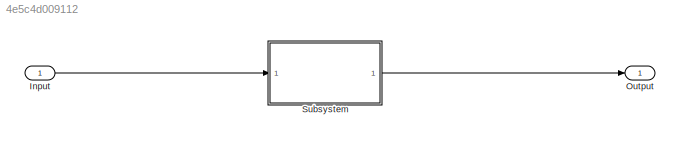
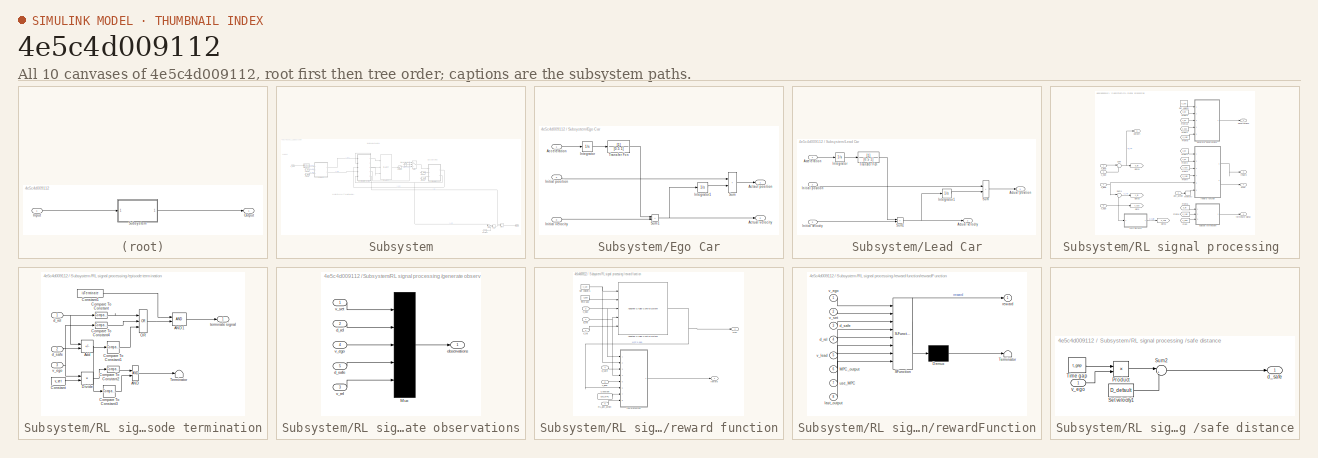
[diagram: thumbnail index - all 10 canvases of the model, root first then tree order]
MODEL slx_4e5c4d009112
KIND model
CONFIG AbsTol = auto
CONFIG EnableMultiTasking = off
CONFIG FixedStep = Ts
CONFIG MaxStep = auto
CONFIG MinStep = auto
CONFIG RelTol = 1e-3
CONFIG SampleTimeConstraint = Unconstrained
CONFIG SolverName = FixedStepAuto
CONFIG StartTime = 0.0
CONFIG StopTime = T
BLOCK [Inport] Input
BLOCK [Outport] Output
BLOCK [SubSystem] Subsystem
  Ports = [1, 1]
  RequestExecContextInheritance = off
BLOCK [Constant] Subsystem/Constant
  Value = D_default
BLOCK [SubSystem] Subsystem/Ego Car
  Ports = [3, 2]
  RequestExecContextInheritance = off
BLOCK [Inport] Subsystem/Ego Car/Acceleration
BLOCK [Outport] Subsystem/Ego Car/Actaul position
  VectorParamsAs1DForOutWhenUnconnected = off
BLOCK [Outport] Subsystem/Ego Car/Actual velocity
  Port = 2
  VectorParamsAs1DForOutWhenUnconnected = off
BLOCK [Inport] Subsystem/Ego Car/Initial position
  Port = 2
BLOCK [Inport] Subsystem/Ego Car/Initial velocity
  Port = 3
BLOCK [Integrator] Subsystem/Ego Car/Integrator
  Ports = [1, 1]
BLOCK [Integrator] Subsystem/Ego Car/Integrator1
  Ports = [1, 1]
BLOCK [Sum] Subsystem/Ego Car/Sum
  IconShape = rectangular
  Ports = [2, 1]
BLOCK [Sum] Subsystem/Ego Car/Sum1
  IconShape = rectangular
  Ports = [2, 1]
BLOCK [TransferFcn] Subsystem/Ego Car/Transfer Fcn
  Denominator = [0.5 1]
BLOCK [Gain] Subsystem/Gain1
  Gain = 1.4
BLOCK [SubSystem] Subsystem/Lead Car
  Ports = [3, 2]
  RequestExecContextInheritance = off
BLOCK [Inport] Subsystem/Lead Car/Acceleration
BLOCK [Outport] Subsystem/Lead Car/Actual position
  VectorParamsAs1DForOutWhenUnconnected = off
BLOCK [Outport] Subsystem/Lead Car/Actual velocity
  Port = 2
  VectorParamsAs1DForOutWhenUnconnected = off
BLOCK [Inport] Subsystem/Lead Car/Initial position
  Port = 2
BLOCK [Inport] Subsystem/Lead Car/Initial velocity
  Port = 3
BLOCK [Integrator] Subsystem/Lead Car/Integrator
  Ports = [1, 1]
BLOCK [Integrator] Subsystem/Lead Car/Integrator1
  Ports = [1, 1]
BLOCK [Sum] Subsystem/Lead Car/Sum
  IconShape = rectangular
  Ports = [2, 1]
BLOCK [Sum] Subsystem/Lead Car/Sum1
  IconShape = rectangular
  Ports = [2, 1]
BLOCK [TransferFcn] Subsystem/Lead Car/Transfer Fcn
  Denominator = [0.5 1]
BLOCK [Sum] Subsystem/Minus
  IconShape = rectangular
  Inputs = +-
  Ports = [2, 1]
BLOCK [Outport] Subsystem/Outport
BLOCK [Sum] Subsystem/Plus
  IconShape = rectangular
  Ports = [2, 1]
BLOCK [Reference] Subsystem/RL Agent  REF=rllib/RL Agent
  Ports = [3, 1]
  SourceBlock = rllib/RL Agent
  SourceProductBaseCode = RL
  SourceType = RL Agent
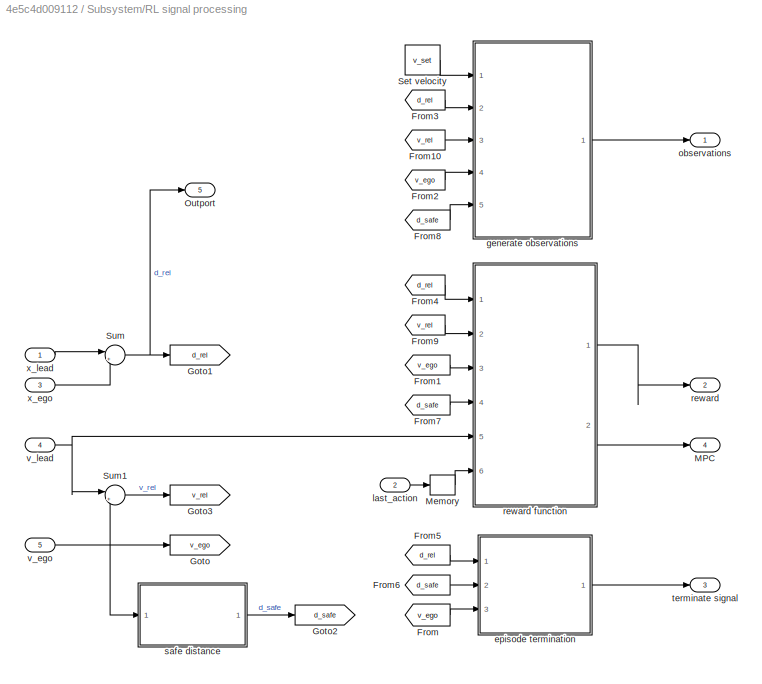
BLOCK [SubSystem] Subsystem/RL signal processing 
  Ports = [5, 5]
  RequestExecContextInheritance = off
BLOCK [From] Subsystem/RL signal processing /From
  GotoTag = v_ego
BLOCK [From] Subsystem/RL signal processing /From1
  GotoTag = v_ego
BLOCK [From] Subsystem/RL signal processing /From10
  GotoTag = v_rel
BLOCK [From] Subsystem/RL signal processing /From2
  GotoTag = v_ego
BLOCK [From] Subsystem/RL signal processing /From3
  GotoTag = d_rel
BLOCK [From] Subsystem/RL signal processing /From4
  GotoTag = d_rel
BLOCK [From] Subsystem/RL signal processing /From5
  GotoTag = d_rel
BLOCK [From] Subsystem/RL signal processing /From6
  GotoTag = d_safe
BLOCK [From] Subsystem/RL signal processing /From7
  GotoTag = d_safe
BLOCK [From] Subsystem/RL signal processing /From8
  GotoTag = d_safe
BLOCK [From] Subsystem/RL signal processing /From9
  GotoTag = v_rel
BLOCK [Goto] Subsystem/RL signal processing /Goto
  GotoTag = v_ego
BLOCK [Goto] Subsystem/RL signal processing /Goto1
  GotoTag = d_rel
BLOCK [Goto] Subsystem/RL signal processing /Goto2
  GotoTag = d_safe
BLOCK [Goto] Subsystem/RL signal processing /Goto3
  GotoTag = v_rel
BLOCK [Outport] Subsystem/RL signal processing /MPC
  Port = 4
BLOCK [Memory] Subsystem/RL signal processing /Memory
BLOCK [Outport] Subsystem/RL signal processing /Outport
  Port = 5
BLOCK [Constant] Subsystem/RL signal processing /Set velocity
  SampleTime = Ts
  Value = v_set
BLOCK [Sum] Subsystem/RL signal processing /Sum
  Inputs = |+-
  Ports = [2, 1]
BLOCK [Sum] Subsystem/RL signal processing /Sum1
  Inputs = |+-
  Ports = [2, 1]
BLOCK [SubSystem] Subsystem/RL signal processing /episode termination
  Ports = [3, 1]
  RequestExecContextInheritance = off
BLOCK [Logic] Subsystem/RL signal processing /episode termination/AND
  AllPortsSameDT = off
  IconShape = distinctive
  OutDataTypeStr = boolean
  Ports = [2, 1]
BLOCK [Logic] Subsystem/RL signal processing /episode termination/AND1
  AllPortsSameDT = off
  IconShape = distinctive
  OutDataTypeStr = boolean
  Ports = [2, 1]
BLOCK [Sum] Subsystem/RL signal processing /episode termination/Add
  IconShape = rectangular
  Inputs = +-
  Ports = [2, 1]
BLOCK [Reference] Subsystem/RL signal processing /episode termination/Compare To Constant  REF=simulink/Logic and Bit
Operations/Compare
To Constant
  Ports = [1, 1]
  SourceBlock = simulink/Logic and Bit\nOperations/Compare\nTo Constant
  SourceProductBaseCode = SL
  SourceType = Compare To Constant
BLOCK [Reference] Subsystem/RL signal processing /episode termination/Compare To Constant1  REF=simulink/Logic and Bit
Operations/Compare
To Constant
  Ports = [1, 1]
  SourceBlock = simulink/Logic and Bit\nOperations/Compare\nTo Constant
  SourceProductBaseCode = SL
  SourceType = Compare To Constant
BLOCK [Reference] Subsystem/RL signal processing /episode termination/Compare To Constant2  REF=simulink/Logic and Bit
Operations/Compare
To Constant
  Ports = [1, 1]
  SourceBlock = simulink/Logic and Bit\nOperations/Compare\nTo Constant
  SourceProductBaseCode = SL
  SourceType = Compare To Constant
BLOCK [Reference] Subsystem/RL signal processing /episode termination/Compare To Constant3  REF=simulink/Logic and Bit
Operations/Compare
To Constant
  Ports = [1, 1]
  SourceBlock = simulink/Logic and Bit\nOperations/Compare\nTo Constant
  SourceProductBaseCode = SL
  SourceType = Compare To Constant
BLOCK [Reference] Subsystem/RL signal processing /episode termination/Compare To Constant4  REF=simulink/Logic and Bit
Operations/Compare
To Constant
  Ports = [1, 1]
  SourceBlock = simulink/Logic and Bit\nOperations/Compare\nTo Constant
  SourceProductBaseCode = SL
  SourceType = Compare To Constant
BLOCK [Constant] Subsystem/RL signal processing /episode termination/Constant
  Value = v_set
BLOCK [Constant] Subsystem/RL signal processing /episode termination/Constant1
  Value = isTerminate
BLOCK [Product] Subsystem/RL signal processing /episode termination/Divide
  Inputs = */
  Ports = [2, 1]
BLOCK [Logic] Subsystem/RL signal processing /episode termination/OR
  AllPortsSameDT = off
  IconShape = distinctive
  Inputs = 3
  Operator = OR
  OutDataTypeStr = boolean
  Ports = [3, 1]
BLOCK [Terminator] Subsystem/RL signal processing /episode termination/Terminator
BLOCK [Inport] Subsystem/RL signal processing /episode termination/d_rel
BLOCK [Inport] Subsystem/RL signal processing /episode termination/d_safe
  Port = 2
BLOCK [Outport] Subsystem/RL signal processing /episode termination/terminate signal
BLOCK [Inport] Subsystem/RL signal processing /episode termination/v_ego
  Port = 3
BLOCK [SubSystem] Subsystem/RL signal processing /generate observations
  Ports = [5, 1]
  RequestExecContextInheritance = off
BLOCK [Mux] Subsystem/RL signal processing /generate observations/Mux
  DisplayOption = bar
  Inputs = 5
  Ports = [5, 1]
BLOCK [Inport] Subsystem/RL signal processing /generate observations/d_rel
  Port = 2
BLOCK [Inport] Subsystem/RL signal processing /generate observations/d_safe
  Port = 5
BLOCK [Outport] Subsystem/RL signal processing /generate observations/observations
BLOCK [Inport] Subsystem/RL signal processing /generate observations/v_ego
  Port = 4
BLOCK [Inport] Subsystem/RL signal processing /generate observations/v_rel
  Port = 3
BLOCK [Inport] Subsystem/RL signal processing /generate observations/v_set
BLOCK [Inport] Subsystem/RL signal processing /last_action
  Port = 2
BLOCK [Outport] Subsystem/RL signal processing /observations
BLOCK [Outport] Subsystem/RL signal processing /reward
  Port = 2
BLOCK [SubSystem] Subsystem/RL signal processing /reward function
  Ports = [6, 2]
  RequestExecContextInheritance = off
BLOCK [Reference] Subsystem/RL signal processing /reward function/Adaptive Cruise Control System  REF=mpcadaslib/Adaptive Cruise Control System
  Ports = [5, 1]
  SourceBlock = mpcadaslib/Adaptive Cruise Control System
  SourceProductBaseCode = MP
  SourceType = Adaptive cruise control (ACC) system
BLOCK [Constant] Subsystem/RL signal processing /reward function/Constant
  Value = use_MPC
BLOCK [Outport] Subsystem/RL signal processing /reward function/MPC
  Port = 2
BLOCK [Inport] Subsystem/RL signal processing /reward function/RL_last_action
  Port = 6
BLOCK [Constant] Subsystem/RL signal processing /reward function/Set velocity1
  SampleTime = Ts
  Value = v_set
BLOCK [Constant] Subsystem/RL signal processing /reward function/Time gap
  SampleTime = Ts
  Value = t_gap
BLOCK [Inport] Subsystem/RL signal processing /reward function/d_rel
BLOCK [Inport] Subsystem/RL signal processing /reward function/d_safe
  Port = 4
BLOCK [Outport] Subsystem/RL signal processing /reward function/reward
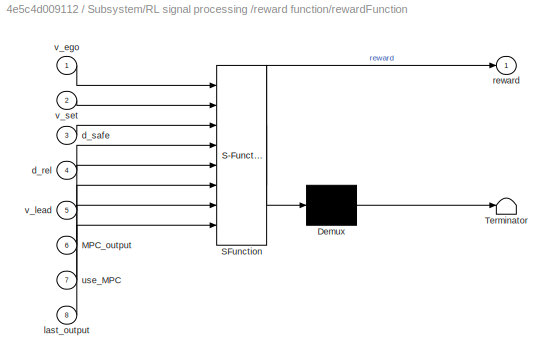
BLOCK [SubSystem] Subsystem/RL signal processing /reward function/rewardFunction
  ErrorFcn = Stateflow.Translate.translate
  PermitHierarchicalResolution = ExplicitOnly
  Ports = [8, 1]
  RequestExecContextInheritance = off
  SFBlockType = MATLAB Function
  TreatAsAtomicUnit = on
BLOCK [Demux] Subsystem/RL signal processing /reward function/rewardFunction/ Demux 
  Outputs = 1
  Ports = [1, 1]
BLOCK [S-Function] Subsystem/RL signal processing /reward function/rewardFunction/ SFunction 
  EnableBusSupport = on
  FunctionName = sf_sfun
  PortCounts = [8 2]
  Ports = [8, 2]
  SFcnIsStateOwnerBlock = off
  SFunctionDeploymentMode = off
  Tag = Stateflow S-Function 2
BLOCK [Terminator] Subsystem/RL signal processing /reward function/rewardFunction/ Terminator 
BLOCK [Inport] Subsystem/RL signal processing /reward function/rewardFunction/MPC_output
  Port = 6
BLOCK [Inport] Subsystem/RL signal processing /reward function/rewardFunction/d_rel
  Port = 4
BLOCK [Inport] Subsystem/RL signal processing /reward function/rewardFunction/d_safe
  Port = 3
BLOCK [Inport] Subsystem/RL signal processing /reward function/rewardFunction/last_output
  Port = 8
BLOCK [Outport] Subsystem/RL signal processing /reward function/rewardFunction/reward
BLOCK [Inport] Subsystem/RL signal processing /reward function/rewardFunction/use_MPC
  Port = 7
BLOCK [Inport] Subsystem/RL signal processing /reward function/rewardFunction/v_ego
BLOCK [Inport] Subsystem/RL signal processing /reward function/rewardFunction/v_lead
  Port = 5
BLOCK [Inport] Subsystem/RL signal processing /reward function/rewardFunction/v_set
  Port = 2
BLOCK [Inport] Subsystem/RL signal processing /reward function/v_ego
  Port = 3
BLOCK [Inport] Subsystem/RL signal processing /reward function/v_lead
  Port = 5
BLOCK [Inport] Subsystem/RL signal processing /reward function/v_rel
  Port = 2
BLOCK [SubSystem] Subsystem/RL signal processing /safe distance
  Ports = [1, 1]
  RequestExecContextInheritance = off
BLOCK [Product] Subsystem/RL signal processing /safe distance/Product
  Ports = [2, 1]
BLOCK [Constant] Subsystem/RL signal processing /safe distance/Set velocity1
  SampleTime = Ts
  Value = D_default
BLOCK [Sum] Subsystem/RL signal processing /safe distance/Sum2
  Inputs = |++
  Ports = [2, 1]
BLOCK [Constant] Subsystem/RL signal processing /safe distance/Time gap
  SampleTime = Ts
  Value = t_gap
BLOCK [Outport] Subsystem/RL signal processing /safe distance/d_safe
BLOCK [Inport] Subsystem/RL signal processing /safe distance/v_ego
BLOCK [Outport] Subsystem/RL signal processing /terminate signal
  Port = 3
BLOCK [Inport] Subsystem/RL signal processing /v_ego
  Port = 5
BLOCK [Inport] Subsystem/RL signal processing /v_lead
  Port = 4
BLOCK [Inport] Subsystem/RL signal processing /x_ego
  Port = 3
BLOCK [Inport] Subsystem/RL signal processing /x_lead
BLOCK [RandomNumber] Subsystem/Random Number
  SampleTime = 1
BLOCK [Saturate] Subsystem/Saturation
  LowerLimit = amin_ego
  UpperLimit = amax_ego
BLOCK [StateSpace] Subsystem/State-Space
  A = -10
  B = 10
  D = 0
  InitialCondition = 0
  NameLocation = top
  Ports = [1, 1]
BLOCK [Switch] Subsystem/Switch
  Criteria = u2 > Threshold
  InputSameDT = off
  SaturateOnIntegerOverflow = off
BLOCK [Inport] Subsystem/in_lead
BLOCK [Constant] Subsystem/v0 host
  SampleTime = Ts
  Value = v0_ego
BLOCK [Constant] Subsystem/v0 lead
  SampleTime = Ts
  Value = v0_lead
BLOCK [Constant] Subsystem/x0 host
  SampleTime = Ts
  Value = x0_ego
BLOCK [Constant] Subsystem/x0 lead
  SampleTime = Ts
  Value = x0_lead
ANNOTATION Subsystem: Reinforcement Learning
ANNOTATION Subsystem: <copyright redacted>
ANNOTATION Subsystem: Ego car dynamics
ANNOTATION Subsystem: Lead Car
LINE Input:1 -> Subsystem:1
LINE Subsystem/Constant:1 -> Subsystem/Plus:2
LINE Subsystem/Ego Car/Acceleration:1 -> Subsystem/Ego Car/Integrator:1
LINE Subsystem/Ego Car/Initial position:1 -> Subsystem/Ego Car/Sum:1
LINE Subsystem/Ego Car/Initial velocity:1 -> Subsystem/Ego Car/Sum1:2
LINE Subsystem/Ego Car/Integrator1:1 -> Subsystem/Ego Car/Sum:2
LINE Subsystem/Ego Car/Integrator:1 -> Subsystem/Ego Car/Transfer Fcn:1
NET Subsystem/Ego Car/Sum1:1 -> Subsystem/Ego Car/Actual velocity:1, Subsystem/Ego Car/Integrator1:1
LINE Subsystem/Ego Car/Sum:1 -> Subsystem/Ego Car/Actaul position:1
LINE Subsystem/Ego Car/Transfer Fcn:1 -> Subsystem/Ego Car/Sum1:1
LINE Subsystem/Ego Car:1 -> Subsystem/RL signal processing :3
NET Subsystem/Ego Car:2 -> Subsystem/Gain1:1, Subsystem/RL signal processing :5
LINE Subsystem/Gain1:1 -> Subsystem/Plus:1
LINE Subsystem/Lead Car/Acceleration:1 -> Subsystem/Lead Car/Integrator:1
LINE Subsystem/Lead Car/Initial position:1 -> Subsystem/Lead Car/Sum:1
LINE Subsystem/Lead Car/Initial velocity:1 -> Subsystem/Lead Car/Sum1:2
LINE Subsystem/Lead Car/Integrator1:1 -> Subsystem/Lead Car/Sum:2
LINE Subsystem/Lead Car/Integrator:1 -> Subsystem/Lead Car/Transfer Fcn:1
NET Subsystem/Lead Car/Sum1:1 -> Subsystem/Lead Car/Actual velocity:1, Subsystem/Lead Car/Integrator1:1
LINE Subsystem/Lead Car/Sum:1 -> Subsystem/Lead Car/Actual position:1
LINE Subsystem/Lead Car/Transfer Fcn:1 -> Subsystem/Lead Car/Sum1:1
LINE Subsystem/Lead Car:1 -> Subsystem/RL signal processing :1
LINE Subsystem/Lead Car:2 -> Subsystem/RL signal processing :4
LINE Subsystem/Minus:1 -> Subsystem/Outport:1
LINE Subsystem/Plus:1 -> Subsystem/Minus:2
LINE Subsystem/RL Agent:1 -> Subsystem/Saturation:1
LINE Subsystem/RL signal processing /From10:1 -> Subsystem/RL signal processing /generate observations:3
LINE Subsystem/RL signal processing /From1:1 -> Subsystem/RL signal processing /reward function:3
LINE Subsystem/RL signal processing /From2:1 -> Subsystem/RL signal processing /generate observations:4
LINE Subsystem/RL signal processing /From3:1 -> Subsystem/RL signal processing /generate observations:2
LINE Subsystem/RL signal processing /From4:1 -> Subsystem/RL signal processing /reward function:1
LINE Subsystem/RL signal processing /From5:1 -> Subsystem/RL signal processing /episode termination:1
LINE Subsystem/RL signal processing /From6:1 -> Subsystem/RL signal processing /episode termination:2
LINE Subsystem/RL signal processing /From7:1 -> Subsystem/RL signal processing /reward function:4
LINE Subsystem/RL signal processing /From8:1 -> Subsystem/RL signal processing /generate observations:5
LINE Subsystem/RL signal processing /From9:1 -> Subsystem/RL signal processing /reward function:2
LINE Subsystem/RL signal processing /From:1 -> Subsystem/RL signal processing /episode termination:3
LINE Subsystem/RL signal processing /Memory:1 -> Subsystem/RL signal processing /reward function:6
LINE Subsystem/RL signal processing /Set velocity:1 -> Subsystem/RL signal processing /generate observations:1
LINE Subsystem/RL signal processing /Sum1:1 -> Subsystem/RL signal processing /Goto3:1
NET Subsystem/RL signal processing /Sum:1 -> Subsystem/RL signal processing /Goto1:1, Subsystem/RL signal processing /Outport:1
LINE Subsystem/RL signal processing /episode termination/AND1:1 -> Subsystem/RL signal processing /episode termination/terminate signal:1
LINE Subsystem/RL signal processing /episode termination/AND:1 -> Subsystem/RL signal processing /episode termination/Terminator:1
NET Subsystem/RL signal processing /episode termination/Add:1 -> Subsystem/RL signal processing /episode termination/Compare To Constant1:1, Subsystem/RL signal processing /episode termination/Compare To Constant3:1
LINE Subsystem/RL signal processing /episode termination/Compare To Constant1:1 -> Subsystem/RL signal processing /episode termination/OR:3
LINE Subsystem/RL signal processing /episode termination/Compare To Constant2:1 -> Subsystem/RL signal processing /episode termination/AND:1
LINE Subsystem/RL signal processing /episode termination/Compare To Constant3:1 -> Subsystem/RL signal processing /episode termination/AND:2
LINE Subsystem/RL signal processing /episode termination/Compare To Constant4:1 -> Subsystem/RL signal processing /episode termination/OR:2
LINE Subsystem/RL signal processing /episode termination/Compare To Constant:1 -> Subsystem/RL signal processing /episode termination/OR:1
LINE Subsystem/RL signal processing /episode termination/Constant1:1 -> Subsystem/RL signal processing /episode termination/AND1:1
LINE Subsystem/RL signal processing /episode termination/Constant:1 -> Subsystem/RL signal processing /episode termination/Divide:2
LINE Subsystem/RL signal processing /episode termination/Divide:1 -> Subsystem/RL signal processing /episode termination/Compare To Constant2:1
LINE Subsystem/RL signal processing /episode termination/OR:1 -> Subsystem/RL signal processing /episode termination/AND1:2
NET Subsystem/RL signal processing /episode termination/d_rel:1 -> Subsystem/RL signal processing /episode termination/Add:1, Subsystem/RL signal processing /episode termination/Compare To Constant:1
LINE Subsystem/RL signal processing /episode termination/d_safe:1 -> Subsystem/RL signal processing /episode termination/Add:2
NET Subsystem/RL signal processing /episode termination/v_ego:1 -> Subsystem/RL signal processing /episode termination/Compare To Constant4:1, Subsystem/RL signal processing /episode termination/Divide:1
LINE Subsystem/RL signal processing /episode termination:1 -> Subsystem/RL signal processing /terminate signal:1
LINE Subsystem/RL signal processing /generate observations/Mux:1 -> Subsystem/RL signal processing /generate observations/observations:1
LINE Subsystem/RL signal processing /generate observations/d_rel:1 -> Subsystem/RL signal processing /generate observations/Mux:2
LINE Subsystem/RL signal processing /generate observations/d_safe:1 -> Subsystem/RL signal processing /generate observations/Mux:4
LINE Subsystem/RL signal processing /generate observations/v_ego:1 -> Subsystem/RL signal processing /generate observations/Mux:3
LINE Subsystem/RL signal processing /generate observations/v_rel:1 -> Subsystem/RL signal processing /generate observations/Mux:5
LINE Subsystem/RL signal processing /generate observations/v_set:1 -> Subsystem/RL signal processing /generate observations/Mux:1
LINE Subsystem/RL signal processing /generate observations:1 -> Subsystem/RL signal processing /observations:1
LINE Subsystem/RL signal processing /last_action:1 -> Subsystem/RL signal processing /Memory:1
NET Subsystem/RL signal processing /reward function/Adaptive Cruise Control System:1 -> Subsystem/RL signal processing /reward function/MPC:1, Subsystem/RL signal processing /reward function/rewardFunction:6
LINE Subsystem/RL signal processing /reward function/Constant:1 -> Subsystem/RL signal processing /reward function/rewardFunction:7
LINE Subsystem/RL signal processing /reward function/RL_last_action:1 -> Subsystem/RL signal processing /reward function/rewardFunction:8
NET Subsystem/RL signal processing /reward function/Set velocity1:1 -> Subsystem/RL signal processing /reward function/Adaptive Cruise Control System:1, Subsystem/RL signal processing /reward function/rewardFunction:2
LINE Subsystem/RL signal processing /reward function/Time gap:1 -> Subsystem/RL signal processing /reward function/Adaptive Cruise Control System:2
NET Subsystem/RL signal processing /reward function/d_rel:1 -> Subsystem/RL signal processing /reward function/Adaptive Cruise Control System:4, Subsystem/RL signal processing /reward function/rewardFunction:4
LINE Subsystem/RL signal processing /reward function/d_safe:1 -> Subsystem/RL signal processing /reward function/rewardFunction:3
LINE Subsystem/RL signal processing /reward function/rewardFunction:1 -> Subsystem/RL signal processing /reward function/reward:1
NET Subsystem/RL signal processing /reward function/v_ego:1 -> Subsystem/RL signal processing /reward function/Adaptive Cruise Control System:3, Subsystem/RL signal processing /reward function/rewardFunction:1
LINE Subsystem/RL signal processing /reward function/v_lead:1 -> Subsystem/RL signal processing /reward function/rewardFunction:5
LINE Subsystem/RL signal processing /reward function/v_rel:1 -> Subsystem/RL signal processing /reward function/Adaptive Cruise Control System:5
LINE Subsystem/RL signal processing /reward function:1 -> Subsystem/RL signal processing /reward:1
LINE Subsystem/RL signal processing /reward function:2 -> Subsystem/RL signal processing /MPC:1
LINE Subsystem/RL signal processing /safe distance/Product:1 -> Subsystem/RL signal processing /safe distance/Sum2:1
LINE Subsystem/RL signal processing /safe distance/Set velocity1:1 -> Subsystem/RL signal processing /safe distance/Sum2:2
LINE Subsystem/RL signal processing /safe distance/Sum2:1 -> Subsystem/RL signal processing /safe distance/d_safe:1
LINE Subsystem/RL signal processing /safe distance/Time gap:1 -> Subsystem/RL signal processing /safe distance/Product:1
LINE Subsystem/RL signal processing /safe distance/v_ego:1 -> Subsystem/RL signal processing /safe distance/Product:2
LINE Subsystem/RL signal processing /safe distance:1 -> Subsystem/RL signal processing /Goto2:1
NET Subsystem/RL signal processing /v_ego:1 -> Subsystem/RL signal processing /Goto:1, Subsystem/RL signal processing /Sum1:2, Subsystem/RL signal processing /safe distance:1
NET Subsystem/RL signal processing /v_lead:1 -> Subsystem/RL signal processing /Sum1:1, Subsystem/RL signal processing /reward function:5
LINE Subsystem/RL signal processing /x_ego:1 -> Subsystem/RL signal processing /Sum:2
LINE Subsystem/RL signal processing /x_lead:1 -> Subsystem/RL signal processing /Sum:1
LINE Subsystem/RL signal processing :1 -> Subsystem/RL Agent:1
NET Subsystem/RL signal processing :2 -> Subsystem/RL Agent:2, Subsystem/RL signal processing :2
LINE Subsystem/RL signal processing :3 -> Subsystem/RL Agent:3
LINE Subsystem/RL signal processing :4 -> Subsystem/Switch:1
LINE Subsystem/RL signal processing :5 -> Subsystem/Minus:1
LINE Subsystem/Random Number:1 -> Subsystem/Switch:2
LINE Subsystem/Saturation:1 -> Subsystem/Switch:3
LINE Subsystem/State-Space:1 -> Subsystem/Lead Car:1
LINE Subsystem/Switch:1 -> Subsystem/Ego Car:1
LINE Subsystem/in_lead:1 -> Subsystem/State-Space:1
LINE Subsystem/v0 host:1 -> Subsystem/Ego Car:3
LINE Subsystem/v0 lead:1 -> Subsystem/Lead Car:3
LINE Subsystem/x0 host:1 -> Subsystem/Ego Car:2
LINE Subsystem/x0 lead:1 -> Subsystem/Lead Car:2
LINE Subsystem:1 -> Output:1
note: NET lines group one-source signal fan-out (src -> all destinations, sorted); 1:1 wires keep LINE
CHART Subsystem/RL signal processing /reward function/rewardFunction states=1 transitions=1
  STATE_LABEL 'eML_blk_kernel()'
  STATE_LABEL 'SCRIPT:\nfunction reward = fcn(v_ego, v_set, d_safe, d_rel, v_lead, MPC_output, use_MPC, last_output)\n\n\n% If the relative distance is less than the safe distance, \n% the ego car tracks the minimum of the lead car velocity and driver-set velocity\n\nd_safe = d_safe + 1;\n\nif d_rel <= d_safe\n    v_error = v_ego - min(v_set, v_lead);\nelse\n    v_error = v_ego - v_set;\nend\n\nif v_error^2 < 0.25\n    M_t = 1;...<+244ch>'
CHART  states=0 transitions=0
